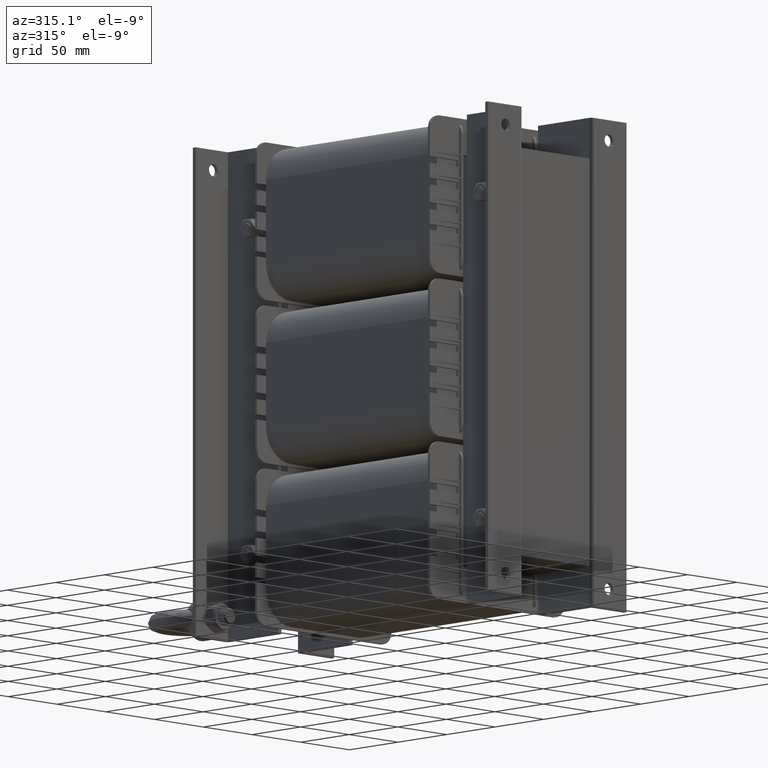
[diagram: clean part render]
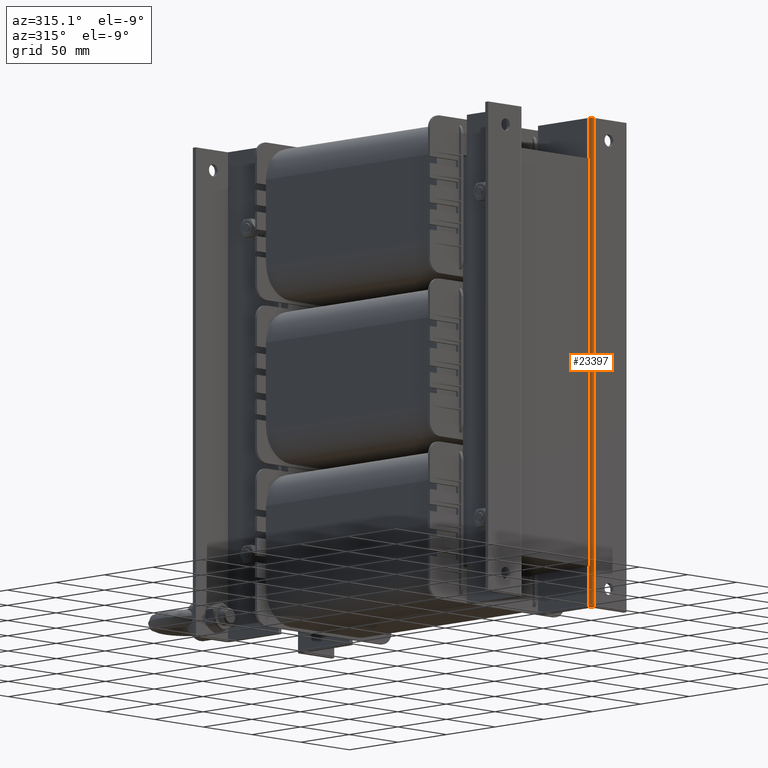
[diagram: same view with one face highlighted and labeled with its STEP entity id]
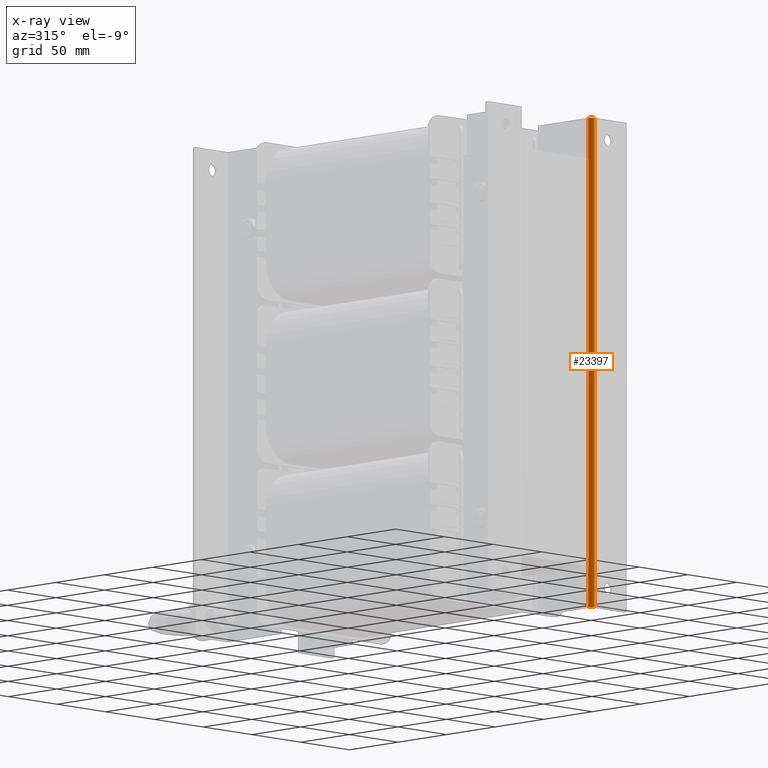
[diagram: x-ray of the same camera — body ghosted, the highlighted face saturated]
A machine part, auxiliary view. The second image highlights one B-rep face of the part: STEP entity #23397.
The next image is the same camera in x-ray: the body ghosted, the highlighted face saturated — about 0% of this face is hidden behind the body in this view.
In plain terms, the highlighted cylindrical surface (edge-blend (fillet) strip) has radius 3.001 mm, axis along (-0, 0, 1).
Its self-contained STEP definition (entity closure, byte-faithful):
#1202=CIRCLE('',#25089,3.00100000000921);
#1203=CIRCLE('',#25090,3.00099999999077);
#1774=CYLINDRICAL_SURFACE('',#25088,3.001);
#2321=FACE_OUTER_BOUND('',#3576,.T.);
#3576=EDGE_LOOP('',(#17014,#17015,#17016,#17017));
#5238=LINE('',#34900,#7874);
#5239=LINE('',#34904,#7875);
#7874=VECTOR('',#28174,10.);
#7875=VECTOR('',#28177,10.);
#10332=VERTEX_POINT('',#34898);
#10333=VERTEX_POINT('',#34899);
#10334=VERTEX_POINT('',#34901);
#10335=VERTEX_POINT('',#34903);
#12838=EDGE_CURVE('',#10332,#10333,#5238,.T.);
#12839=EDGE_CURVE('',#10334,#10332,#1202,.T.);
#12840=EDGE_CURVE('',#10335,#10334,#5239,.T.);
#12841=EDGE_CURVE('',#10333,#10335,#1203,.T.);
#17014=ORIENTED_EDGE('',*,*,#12838,.F.);
#17015=ORIENTED_EDGE('',*,*,#12839,.F.);
#17016=ORIENTED_EDGE('',*,*,#12840,.F.);
#17017=ORIENTED_EDGE('',*,*,#12841,.F.);
#23397=ADVANCED_FACE('',(#2321),#1774,.T.);
#25088=AXIS2_PLACEMENT_3D('',#34897,#28172,#28173);
#25089=AXIS2_PLACEMENT_3D('',#34902,#28175,#28176);
#25090=AXIS2_PLACEMENT_3D('',#34905,#28178,#28179);
#28172=DIRECTION('center_axis',(-3.20731096002823E-16,0.,-1.));
#28173=DIRECTION('ref_axis',(0.,-1.,0.));
#28174=DIRECTION('',(3.68689198618071E-14,-6.26651381584941E-29,1.));
#28175=DIRECTION('center_axis',(-3.20731096002823E-16,0.,-1.));
#28176=DIRECTION('ref_axis',(-4.43941229438886E-12,-1.,0.));
#28177=DIRECTION('',(-2.96059473233375E-16,0.,-1.));
#28178=DIRECTION('center_axis',(3.20731096002823E-16,0.,1.));
#28179=DIRECTION('ref_axis',(-1.,1.66477961040606E-15,0.));
#34897=CARTESIAN_POINT('Origin',(-51.9989999999941,3.00100000000001,180.));
#34898=CARTESIAN_POINT('',(-55.0000000000033,3.00100000000001,-3.30587232976065E-14));
#34899=CARTESIAN_POINT('',(-54.9999999999848,3.001,360.));
#34900=CARTESIAN_POINT('',(-54.9999999999941,3.001,179.999999999999));
#34901=CARTESIAN_POINT('',(-51.999,-5.55111512312578E-16,0.));
#34902=CARTESIAN_POINT('Origin',(-51.9989999999941,3.00100000000001,-3.5527136788005E-14));
#34903=CARTESIAN_POINT('',(-51.9989999999999,-5.55111512312578E-16,360.));
#34904=CARTESIAN_POINT('',(-51.9989999999999,0.,270.));
#34905=CARTESIAN_POINT('Origin',(-51.998999999994,3.00100000000001,360.));